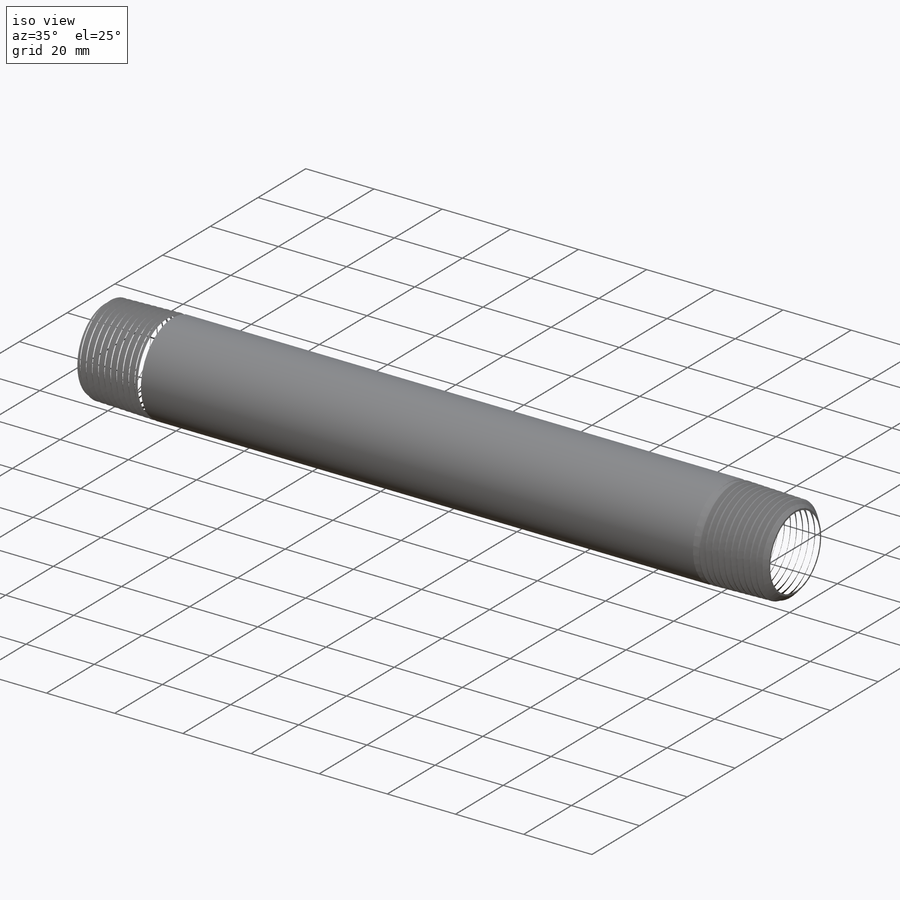
[diagram: iso view]
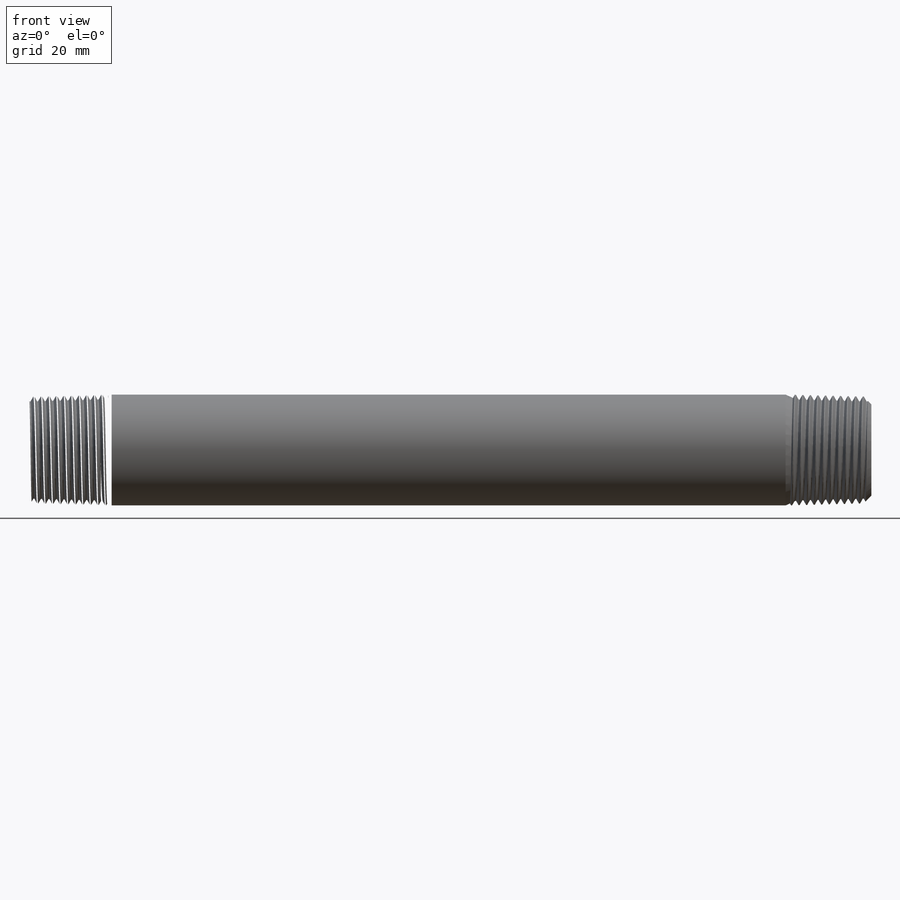
[diagram: front view]
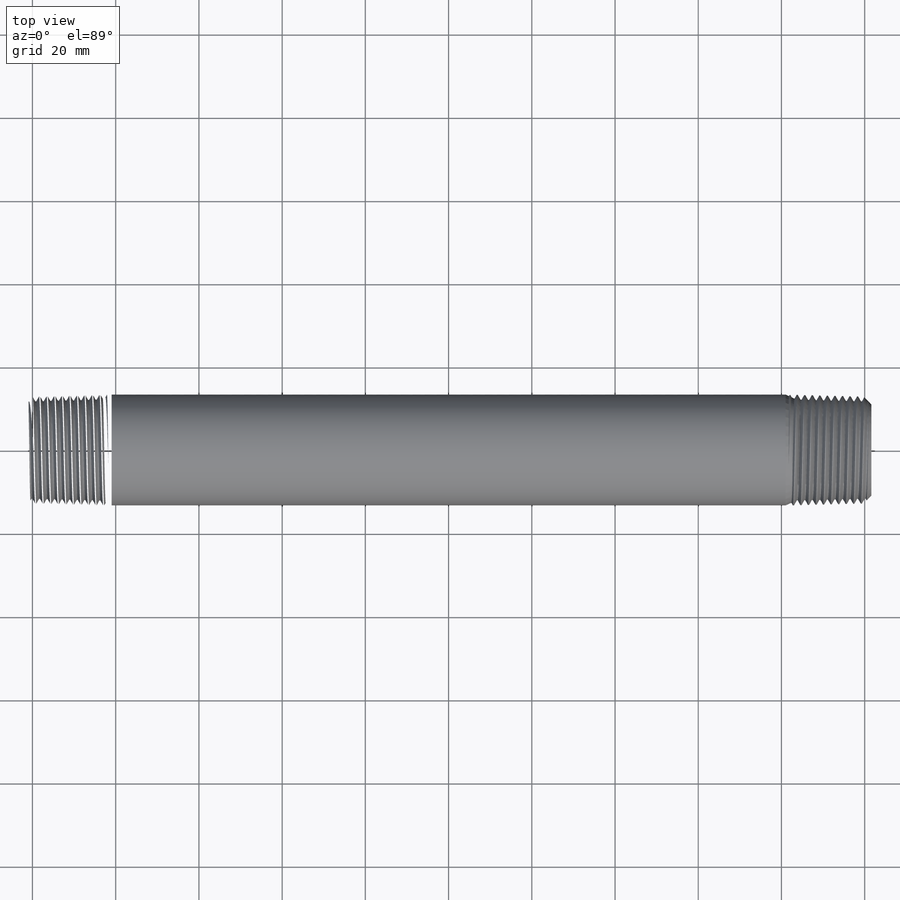
[diagram: top view]
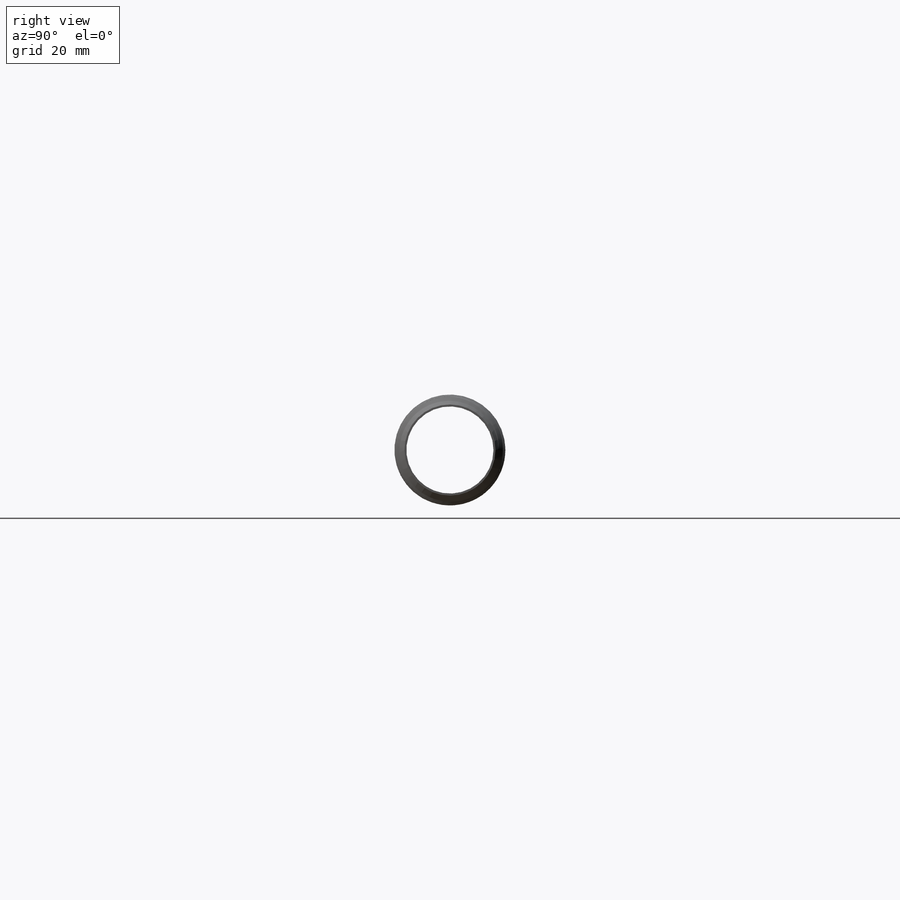
[diagram: right view]
SOLIDWORKS PART (.sldprt)
format: sldprt  version: not decoded by parser v0  size: 1,402,880 bytes
history: native  units: mm
features: sketch x10, extrude x3, cut_extrude x3, material x1, plane x1, helix x1, chamfer x1, sweep x1, mirror x1 (+12 scaffold rows collapsed)
feature tree (34):
  scaffold x12  (default folders/planes/origin — collapsed)
  material  "Material <not specified>"
  sketch  "Sketch1"  dims[c1.pipe od=26.67mm c1.D1=26.67mm c1.D=203.2mm c1.R=~15.10284mm c1.D2=~15.10284mm c1.D3=6.35mm c2.R=20.1549mm c2.D2=~9.978571mm c2.D3=20.1549mm]
  plane  "Plane1"
  sketch  "Sketch2"
  extrude  "Extrude1"  [1 undecoded]
  sketch  "Sketch3"
  helix  "Helix/Spiral1"  Pitch=25.2349mm pitch=1.814286mm
  sketch  "Sketch4"  dims[c1.D1=~0.226786mm c1.D2=~0.907143mm c1.D3=~1.174647mm c2.D3=60.0deg c2.D4=~2.778125mm c3.D4=10.0deg c4.D4=~0.823148mm c5.D4=10.0deg]
  sketch  "Sketch5"  dims[ID=20.9296mm D1=~1.360714mm]
  chamfer  "Chamfer1"  Distance=1.814286mm Angle=45deg
  sweep  "Cut-Sweep1"
  sketch  "Sketch10"  dims[D1=25.3365mm]
  cut_extrude  "Cut-Extrude4"  [1 undecoded]
  sketch  "Sketch11"  dims[D1=26.67mm]
  extrude  "Extrude4"  [1 undecoded]
  sketch  "Sketch16"  dims[D1=0.0mm]
  cut_extrude  "Cut-Extrude5"  Depth=0.453571mm
  sketch  "Sketch17"  dims[D1=0.0mm]
  extrude  "Extrude5"  Depth=5.442857mm
  mirror  "Mirror1"
  sketch  "Sketch15"  dims[D1=26.67mm D2=20.9296mm]
  cut_extrude  "Cut-Extrude3"  [1 undecoded]
decode coverage: 12 of 20 modeling features carry decoded parameters
note: ~ marks probable driven/reference dimensions
note: 4 parameter values undecoded
summary: no parameter record found for 4 features
note: suppression state not decoded; provenance and decode notes live in map.json
